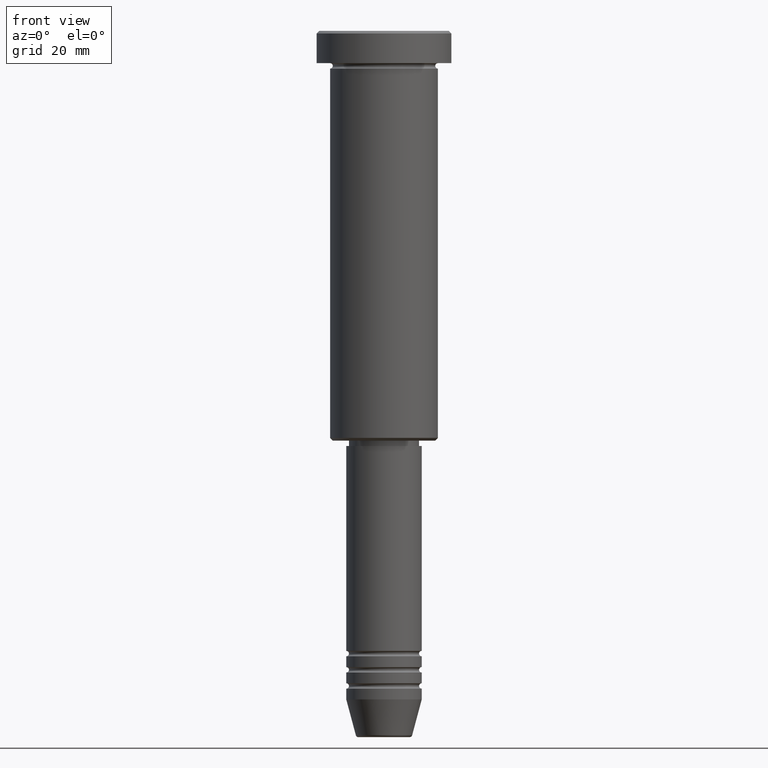
[diagram: clean part render]
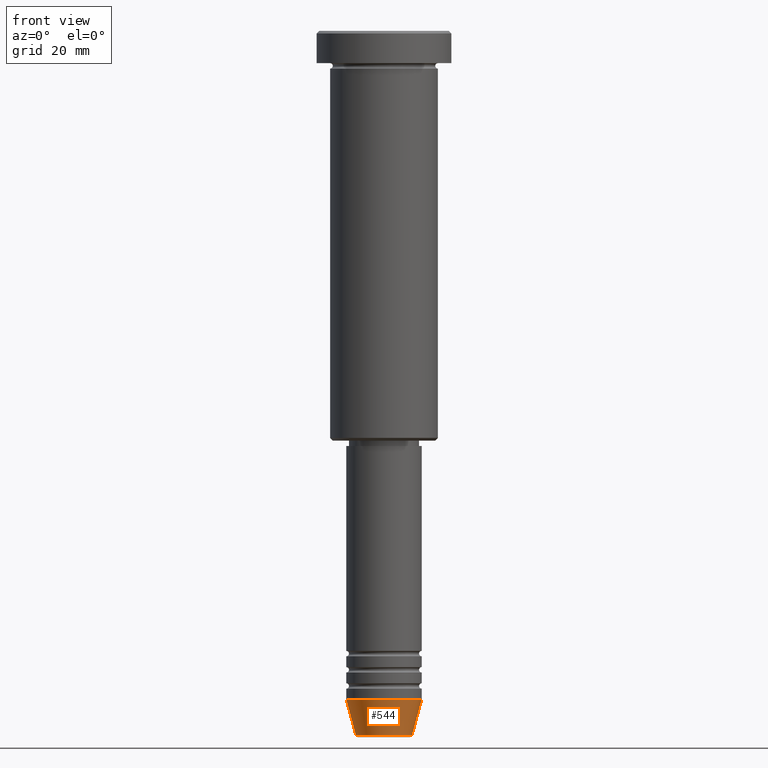
[diagram: same view with one face highlighted and labeled with its STEP entity id]
A machine part, front view. The second image highlights one B-rep face of the part: STEP entity #544.
In plain terms, the highlighted conical surface has half-angle 15 deg.
Its self-contained STEP definition (entity closure, byte-faithful):
#35 = CARTESIAN_POINT ( 'NONE',  ( -5.223655072137191269, 7.484830028987061160E-16, -130.6294095225512422 ) ) ;
#44 = VERTEX_POINT ( 'NONE', #1180 ) ;
#64 = ORIENTED_EDGE ( 'NONE', *, *, #190, .T. ) ;
#65 = DIRECTION ( 'NONE',  ( -0.000000000000000000, -0.000000000000000000, 1.000000000000000000 ) ) ;
#73 = CIRCLE ( 'NONE', #790, 7.000000000000000000 ) ;
#137 = VERTEX_POINT ( 'NONE', #834 ) ;
#190 = EDGE_CURVE ( 'NONE', #137, #44, #756, .T. ) ;
#219 = VERTEX_POINT ( 'NONE', #35 ) ;
#236 = LINE ( 'NONE', #500, #981 ) ;
#303 = DIRECTION ( 'NONE',  ( 1.000000000000000000, 0.000000000000000000, 0.000000000000000000 ) ) ;
#318 = DIRECTION ( 'NONE',  ( -0.2588190451025214056, 3.169619151431772953E-17, 0.9659258262890680902 ) ) ;
#375 = VERTEX_POINT ( 'NONE', #1132 ) ;
#415 = CONICAL_SURFACE ( 'NONE', #1045, 7.000000000000000000, 0.2617993877991501295 ) ;
#467 = VECTOR ( 'NONE', #651, 1000.000000000000000 ) ;
#475 = EDGE_CURVE ( 'NONE', #375, #44, #73, .T. ) ;
#500 = CARTESIAN_POINT ( 'NONE',  ( -7.000000000000000000, 8.572527594031473190E-16, -124.0000000000000000 ) ) ;
#508 = EDGE_LOOP ( 'NONE', ( #925, #1059, #64, #1071 ) ) ;
#544 = ADVANCED_FACE ( 'NONE', ( #1168 ), #415, .T. ) ;
#589 = DIRECTION ( 'NONE',  ( -0.000000000000000000, -0.000000000000000000, 1.000000000000000000 ) ) ;
#651 = DIRECTION ( 'NONE',  ( 0.2588190451025214056, 0.000000000000000000, 0.9659258262890680902 ) ) ;
#704 = DIRECTION ( 'NONE',  ( -0.000000000000000000, -0.000000000000000000, 1.000000000000000000 ) ) ;
#718 = EDGE_CURVE ( 'NONE', #219, #137, #768, .T. ) ;
#742 = EDGE_CURVE ( 'NONE', #219, #375, #236, .T. ) ;
#756 = LINE ( 'NONE', #929, #467 ) ;
#768 = CIRCLE ( 'NONE', #921, 5.223655072137191269 ) ;
#790 = AXIS2_PLACEMENT_3D ( 'NONE', #880, #65, #885 ) ;
#834 = CARTESIAN_POINT ( 'NONE',  ( 5.223655072137191269, 0.000000000000000000, -130.6294095225512422 ) ) ;
#880 = CARTESIAN_POINT ( 'NONE',  ( 0.000000000000000000, 0.000000000000000000, -124.0000000000000000 ) ) ;
#885 = DIRECTION ( 'NONE',  ( 1.000000000000000000, 0.000000000000000000, 0.000000000000000000 ) ) ;
#897 = DIRECTION ( 'NONE',  ( 1.000000000000000000, 0.000000000000000000, 0.000000000000000000 ) ) ;
#921 = AXIS2_PLACEMENT_3D ( 'NONE', #936, #589, #303 ) ;
#925 = ORIENTED_EDGE ( 'NONE', *, *, #742, .F. ) ;
#929 = CARTESIAN_POINT ( 'NONE',  ( 7.000000000000000000, 0.000000000000000000, -124.0000000000000000 ) ) ;
#936 = CARTESIAN_POINT ( 'NONE',  ( 0.000000000000000000, 0.000000000000000000, -130.6294095225512422 ) ) ;
#981 = VECTOR ( 'NONE', #318, 1000.000000000000000 ) ;
#1045 = AXIS2_PLACEMENT_3D ( 'NONE', #1080, #704, #897 ) ;
#1059 = ORIENTED_EDGE ( 'NONE', *, *, #718, .T. ) ;
#1071 = ORIENTED_EDGE ( 'NONE', *, *, #475, .F. ) ;
#1080 = CARTESIAN_POINT ( 'NONE',  ( 0.000000000000000000, 0.000000000000000000, -124.0000000000000000 ) ) ;
#1132 = CARTESIAN_POINT ( 'NONE',  ( -7.000000000000000000, 8.572527594031473190E-16, -124.0000000000000000 ) ) ;
#1168 = FACE_OUTER_BOUND ( 'NONE', #508, .T. ) ;
#1180 = CARTESIAN_POINT ( 'NONE',  ( 7.000000000000000000, 0.000000000000000000, -124.0000000000000000 ) ) ;